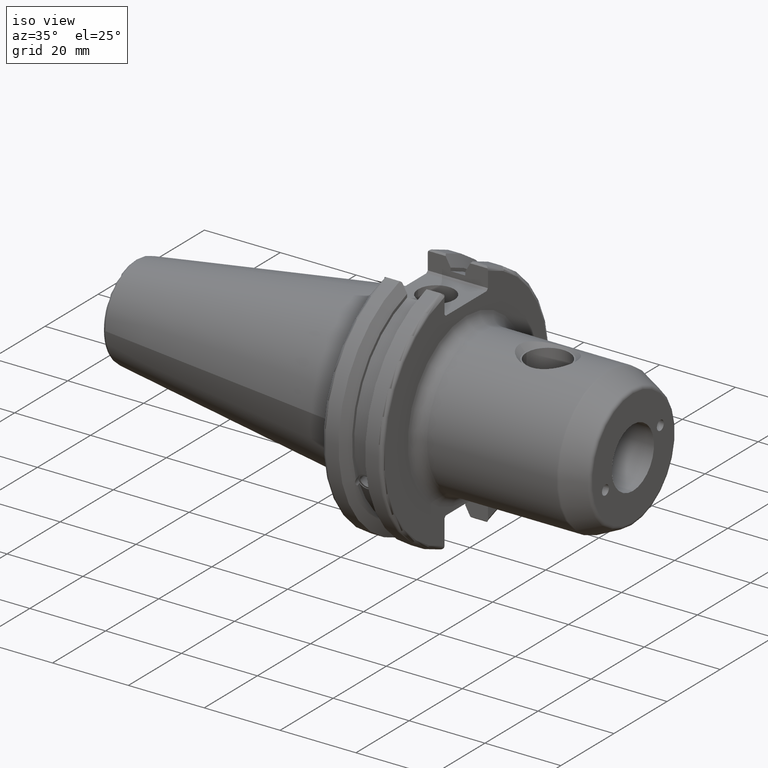
[diagram: clean part render]
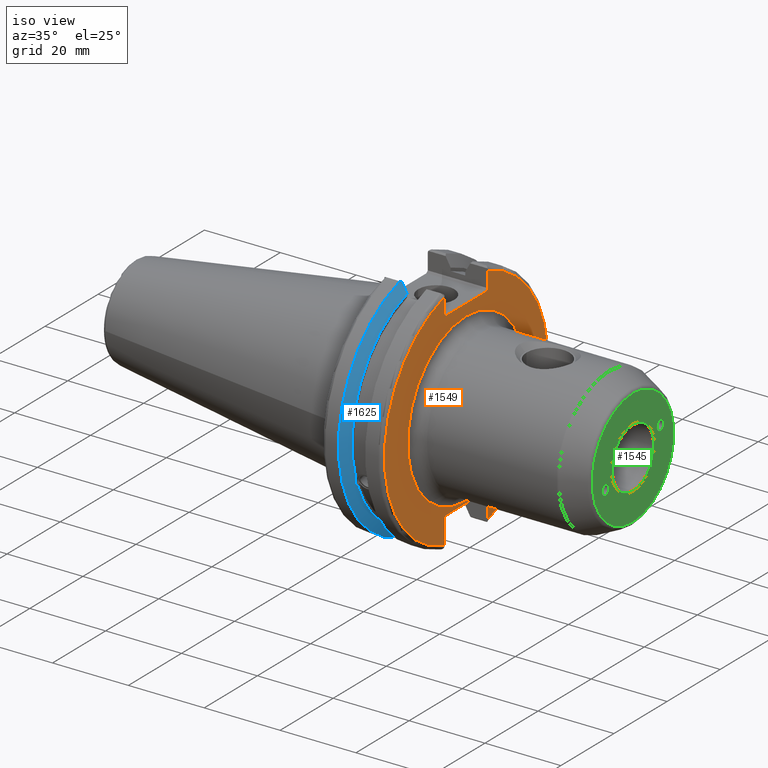
[diagram: same view with three faces highlighted in distinct colors, each labeled with its STEP entity id]
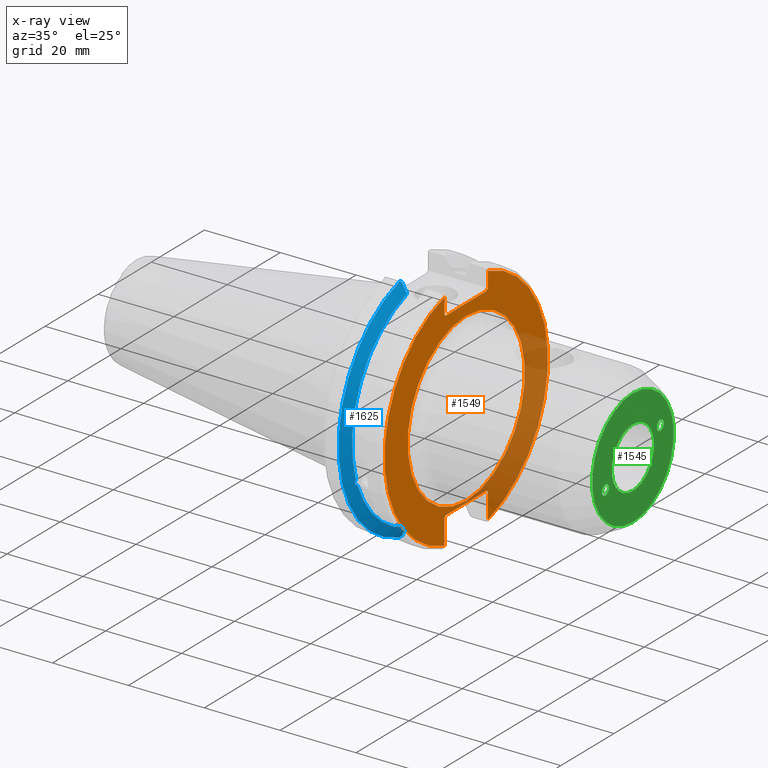
[diagram: x-ray of the same camera — body ghosted, the three highlighted faces saturated]
A machine part, iso view with three faces highlighted in distinct colors.
The next image is the same camera in x-ray (body ghosted, the three faces saturated) — at least one of them is partly hidden behind the body in this view.
Their STEP definitions:

[orange] entity #1549 — the highlighted planar face has unit normal (1, 0, 0).
#45=FACE_BOUND('',#293,.T.);
#63=PLANE('',#1679);
#196=FACE_OUTER_BOUND('',#292,.T.);
#292=EDGE_LOOP('',(#1098,#1099,#1100,#1101,#1102,#1103,#1104,#1105,#1106,
#1107,#1108,#1109));
#293=EDGE_LOOP('',(#1110));
#394=LINE('',#2431,#490);
#395=LINE('',#2433,#491);
#396=LINE('',#2435,#492);
#397=LINE('',#2437,#493);
#398=LINE('',#2439,#494);
#399=LINE('',#2443,#495);
#400=LINE('',#2445,#496);
#401=LINE('',#2447,#497);
#402=LINE('',#2449,#498);
#403=LINE('',#2450,#499);
#490=VECTOR('',#1905,10.);
#491=VECTOR('',#1906,10.);
#492=VECTOR('',#1907,10.);
#493=VECTOR('',#1908,10.);
#494=VECTOR('',#1909,10.);
#495=VECTOR('',#1912,10.);
#496=VECTOR('',#1913,10.);
#497=VECTOR('',#1914,10.);
#498=VECTOR('',#1915,10.);
#499=VECTOR('',#1916,10.);
#591=CIRCLE('',#1678,22.05);
#592=CIRCLE('',#1680,30.75);
#593=CIRCLE('',#1681,30.75);
#668=VERTEX_POINT('',#2423);
#669=VERTEX_POINT('',#2427);
#670=VERTEX_POINT('',#2428);
#671=VERTEX_POINT('',#2430);
#672=VERTEX_POINT('',#2432);
#673=VERTEX_POINT('',#2434);
#674=VERTEX_POINT('',#2436);
#675=VERTEX_POINT('',#2438);
#676=VERTEX_POINT('',#2440);
#677=VERTEX_POINT('',#2442);
#678=VERTEX_POINT('',#2444);
#679=VERTEX_POINT('',#2446);
#680=VERTEX_POINT('',#2448);
#835=EDGE_CURVE('',#668,#668,#591,.T.);
#836=EDGE_CURVE('',#669,#670,#592,.T.);
#837=EDGE_CURVE('',#669,#671,#394,.T.);
#838=EDGE_CURVE('',#672,#671,#395,.T.);
#839=EDGE_CURVE('',#672,#673,#396,.T.);
#840=EDGE_CURVE('',#674,#673,#397,.T.);
#841=EDGE_CURVE('',#674,#675,#398,.T.);
#842=EDGE_CURVE('',#676,#675,#593,.T.);
#843=EDGE_CURVE('',#676,#677,#399,.T.);
#844=EDGE_CURVE('',#678,#677,#400,.T.);
#845=EDGE_CURVE('',#678,#679,#401,.T.);
#846=EDGE_CURVE('',#680,#679,#402,.T.);
#847=EDGE_CURVE('',#680,#670,#403,.T.);
#1098=ORIENTED_EDGE('',*,*,#836,.F.);
#1099=ORIENTED_EDGE('',*,*,#837,.T.);
#1100=ORIENTED_EDGE('',*,*,#838,.F.);
#1101=ORIENTED_EDGE('',*,*,#839,.T.);
#1102=ORIENTED_EDGE('',*,*,#840,.F.);
#1103=ORIENTED_EDGE('',*,*,#841,.T.);
#1104=ORIENTED_EDGE('',*,*,#842,.F.);
#1105=ORIENTED_EDGE('',*,*,#843,.T.);
#1106=ORIENTED_EDGE('',*,*,#844,.F.);
#1107=ORIENTED_EDGE('',*,*,#845,.T.);
#1108=ORIENTED_EDGE('',*,*,#846,.F.);
#1109=ORIENTED_EDGE('',*,*,#847,.T.);
#1110=ORIENTED_EDGE('',*,*,#835,.F.);
#1549=ADVANCED_FACE('',(#196,#45),#63,.T.);
#1678=AXIS2_PLACEMENT_3D('',#2425,#1899,#1900);
#1679=AXIS2_PLACEMENT_3D('',#2426,#1901,#1902);
#1680=AXIS2_PLACEMENT_3D('',#2429,#1903,#1904);
#1681=AXIS2_PLACEMENT_3D('',#2441,#1910,#1911);
#1899=DIRECTION('center_axis',(1.,0.,0.));
#1900=DIRECTION('ref_axis',(0.,1.22464679914735E-16,-1.));
#1901=DIRECTION('center_axis',(1.,0.,0.));
#1902=DIRECTION('ref_axis',(0.,0.,-1.));
#1903=DIRECTION('center_axis',(-1.,0.,0.));
#1904=DIRECTION('ref_axis',(0.,1.,-6.12323399573677E-17));
#1905=DIRECTION('',(0.,0.,-1.));
#1906=DIRECTION('',(0.,0.707106781186549,0.707106781186546));
#1907=DIRECTION('',(0.,-1.,0.));
#1908=DIRECTION('',(0.,0.70710678118655,-0.707106781186545));
#1909=DIRECTION('',(0.,0.,1.));
#1910=DIRECTION('center_axis',(-1.,0.,0.));
#1911=DIRECTION('ref_axis',(0.,-1.,1.60812264967664E-16));
#1912=DIRECTION('',(0.,0.,1.));
#1913=DIRECTION('',(0.,-0.707106781186549,-0.707106781186546));
#1914=DIRECTION('',(0.,1.,0.));
#1915=DIRECTION('',(0.,-0.707106781186549,0.707106781186546));
#1916=DIRECTION('',(0.,0.,-1.));
#2423=CARTESIAN_POINT('',(19.05,-2.70034619211991E-15,-22.05));
#2425=CARTESIAN_POINT('Origin',(19.05,0.,0.));
#2426=CARTESIAN_POINT('Origin',(19.05,0.,0.));
#2427=CARTESIAN_POINT('',(19.05,8.19,29.6392712461019));
#2428=CARTESIAN_POINT('',(19.05,8.19,-29.6392712461019));
#2429=CARTESIAN_POINT('Origin',(19.05,0.,0.));
#2430=CARTESIAN_POINT('',(19.05,8.19,25.5));
#2431=CARTESIAN_POINT('',(19.05,8.19,12.5));
#2432=CARTESIAN_POINT('',(19.05,7.69,25.));
#2433=CARTESIAN_POINT('',(19.05,-0.35750000000001,16.9525));
#2434=CARTESIAN_POINT('',(19.05,-7.69,25.));
#2435=CARTESIAN_POINT('',(19.05,0.,25.));
#2436=CARTESIAN_POINT('',(19.05,-8.19,25.5));
#2437=CARTESIAN_POINT('',(19.05,0.357500000000014,16.9525));
#2438=CARTESIAN_POINT('',(19.05,-8.19,29.6392712461019));
#2439=CARTESIAN_POINT('',(19.05,-8.19,12.5));
#2440=CARTESIAN_POINT('',(19.05,-8.19,-29.6392712461019));
#2441=CARTESIAN_POINT('Origin',(19.05,0.,0.));
#2442=CARTESIAN_POINT('',(19.05,-8.19,-23.1));
#2443=CARTESIAN_POINT('',(19.05,-8.19,-11.3));
#2444=CARTESIAN_POINT('',(19.05,-7.69,-22.6));
#2445=CARTESIAN_POINT('',(19.05,-0.242499999999991,-15.1525));
#2446=CARTESIAN_POINT('',(19.05,7.69,-22.6));
#2447=CARTESIAN_POINT('',(19.05,-2.77555756156289E-16,-22.6));
#2448=CARTESIAN_POINT('',(19.05,8.19,-23.1));
#2449=CARTESIAN_POINT('',(19.05,0.242499999999989,-15.1525));
#2450=CARTESIAN_POINT('',(19.05,8.19,-11.3));

[blue] entity #1625 — the highlighted conical surface has half-angle 60 deg.
#25=(
BOUNDED_CURVE()
B_SPLINE_CURVE(2,(#2981,#2982,#2983),.UNSPECIFIED.,.F.,.F.)
B_SPLINE_CURVE_WITH_KNOTS((3,3),(0.,0.276549142796136),.UNSPECIFIED.)
CURVE()
GEOMETRIC_REPRESENTATION_ITEM()
RATIONAL_B_SPLINE_CURVE((1.,1.00095203903316,1.00031614444813))
REPRESENTATION_ITEM('')
);
#26=(
BOUNDED_CURVE()
B_SPLINE_CURVE(2,(#2993,#2994,#2995),.UNSPECIFIED.,.F.,.F.)
B_SPLINE_CURVE_WITH_KNOTS((3,3),(0.0550586467392022,0.33160778953585),
 .UNSPECIFIED.)
CURVE()
GEOMETRIC_REPRESENTATION_ITEM()
RATIONAL_B_SPLINE_CURVE((1.00031614445148,1.00095203904325,1.))
REPRESENTATION_ITEM('')
);
#27=(
BOUNDED_CURVE()
B_SPLINE_CURVE(2,(#3028,#3029,#3030),.UNSPECIFIED.,.F.,.F.)
B_SPLINE_CURVE_WITH_KNOTS((3,3),(0.,0.0639048713676282),.UNSPECIFIED.)
CURVE()
GEOMETRIC_REPRESENTATION_ITEM()
RATIONAL_B_SPLINE_CURVE((1.,1.00028444218284,1.00047644010574))
REPRESENTATION_ITEM('')
);
#28=(
BOUNDED_CURVE()
B_SPLINE_CURVE(2,(#3036,#3037,#3038),.UNSPECIFIED.,.F.,.F.)
B_SPLINE_CURVE_WITH_KNOTS((3,3),(0.329353533631205,0.393258405001025),
 .UNSPECIFIED.)
CURVE()
GEOMETRIC_REPRESENTATION_ITEM()
RATIONAL_B_SPLINE_CURVE((1.00047644010572,1.00028444218283,1.))
REPRESENTATION_ITEM('')
);
#109=B_SPLINE_CURVE_WITH_KNOTS('',3,(#2595,#2596,#2597,#2598,#2599,#2600,
#2601,#2602,#2603,#2604,#2605,#2606,#2607,#2608),.UNSPECIFIED.,.F.,.F.,
(4,2,2,2,2,2,4),(0.451995700189024,0.464547828547663,0.504528771685167,
0.544509714822672,0.584490657960178,0.624471601097683,0.63702372945632),
 .UNSPECIFIED.);
#272=FACE_OUTER_BOUND('',#384,.T.);
#384=EDGE_LOOP('',(#1510,#1511,#1512,#1513,#1514,#1515,#1516,#1517));
#608=CIRCLE('',#1722,28.9593772964944);
#631=CIRCLE('',#1780,31.75);
#649=CIRCLE('',#1831,28.9593772964944);
#701=VERTEX_POINT('',#2592);
#702=VERTEX_POINT('',#2594);
#719=VERTEX_POINT('',#2687);
#780=VERTEX_POINT('',#2978);
#781=VERTEX_POINT('',#2980);
#784=VERTEX_POINT('',#2992);
#788=VERTEX_POINT('',#3026);
#789=VERTEX_POINT('',#3032);
#875=EDGE_CURVE('',#702,#701,#109,.T.);
#899=EDGE_CURVE('',#702,#719,#608,.T.);
#984=EDGE_CURVE('',#781,#780,#25,.T.);
#990=EDGE_CURVE('',#784,#719,#26,.T.);
#998=EDGE_CURVE('',#788,#780,#27,.T.);
#1000=EDGE_CURVE('',#788,#789,#631,.T.);
#1001=EDGE_CURVE('',#784,#789,#28,.T.);
#1045=EDGE_CURVE('',#781,#701,#649,.T.);
#1510=ORIENTED_EDGE('',*,*,#875,.T.);
#1511=ORIENTED_EDGE('',*,*,#1045,.F.);
#1512=ORIENTED_EDGE('',*,*,#984,.T.);
#1513=ORIENTED_EDGE('',*,*,#998,.F.);
#1514=ORIENTED_EDGE('',*,*,#1000,.T.);
#1515=ORIENTED_EDGE('',*,*,#1001,.F.);
#1516=ORIENTED_EDGE('',*,*,#990,.T.);
#1517=ORIENTED_EDGE('',*,*,#899,.F.);
#1535=CONICAL_SURFACE('',#1830,30.3546886482472,1.0471975511966);
#1625=ADVANCED_FACE('',(#272),#1535,.T.);
#1722=AXIS2_PLACEMENT_3D('',#2688,#2012,#2013);
#1780=AXIS2_PLACEMENT_3D('',#3034,#2170,#2171);
#1830=AXIS2_PLACEMENT_3D('',#3154,#2291,#2292);
#1831=AXIS2_PLACEMENT_3D('',#3155,#2293,#2294);
#2012=DIRECTION('center_axis',(1.,0.,0.));
#2013=DIRECTION('ref_axis',(0.,0.,-1.));
#2170=DIRECTION('center_axis',(1.,0.,0.));
#2171=DIRECTION('ref_axis',(0.,0.,-1.));
#2291=DIRECTION('center_axis',(-1.,0.,0.));
#2292=DIRECTION('ref_axis',(0.,-1.,-1.22464679914735E-16));
#2293=DIRECTION('center_axis',(1.,0.,0.));
#2294=DIRECTION('ref_axis',(0.,0.,-1.));
#2592=CARTESIAN_POINT('',(9.2191,-27.4956274489925,-9.09043478536245));
#2594=CARTESIAN_POINT('',(9.2191,-26.9060914640648,-10.7101715919071));
#2595=CARTESIAN_POINT('Ctrl Pts',(9.2191,-26.9060914640648,-10.7101715919071));
#2596=CARTESIAN_POINT('Ctrl Pts',(9.20497959280038,-26.9406927482839,-10.6893765730703));
#2597=CARTESIAN_POINT('Ctrl Pts',(9.19150701821433,-26.9744191989197,-10.6676007180673));
#2598=CARTESIAN_POINT('Ctrl Pts',(9.13811855884095,-27.1113422433189,-10.5723885976054));
#2599=CARTESIAN_POINT('Ctrl Pts',(9.09998029158246,-27.2180531796526,-10.4801333026531));
#2600=CARTESIAN_POINT('Ctrl Pts',(9.04778935539424,-27.3968610665578,-10.2639559818059));
#2601=CARTESIAN_POINT('Ctrl Pts',(9.0341,-27.4684373304961,-10.139516340139));
#2602=CARTESIAN_POINT('Ctrl Pts',(9.0341,-27.559599249844,-9.8890510252165));
#2603=CARTESIAN_POINT('Ctrl Pts',(9.04778935539424,-27.5847569104122,-9.74771639360671));
#2604=CARTESIAN_POINT('Ctrl Pts',(9.09998029158246,-27.5867382255984,-9.46717946402648));
#2605=CARTESIAN_POINT('Ctrl Pts',(9.13811855884095,-27.5642934663232,-9.32791534028655));
#2606=CARTESIAN_POINT('Ctrl Pts',(9.19150701821434,-27.5206055003512,-9.16696618806877));
#2607=CARTESIAN_POINT('Ctrl Pts',(9.20497959280038,-27.5087667900418,-9.12860597076217));
#2608=CARTESIAN_POINT('Ctrl Pts',(9.2191,-27.4956274489925,-9.09043478536245));
#2687=CARTESIAN_POINT('',(9.2191,-8.19,-27.7771386827498));
#2688=CARTESIAN_POINT('Origin',(9.2191,0.,0.));
#2978=CARTESIAN_POINT('',(7.88668530351257,-8.19,30.1755016258903));
#2980=CARTESIAN_POINT('',(9.2191,-8.19,27.7771386827498));
#2981=CARTESIAN_POINT('Ctrl Pts',(9.2191,-8.19,27.7771386827498));
#2982=CARTESIAN_POINT('Ctrl Pts',(8.58046356152393,-8.19,28.9303689539705));
#2983=CARTESIAN_POINT('Ctrl Pts',(7.88668530351257,-8.19,30.1755016258903));
#2992=CARTESIAN_POINT('',(7.88668530351256,-8.19,-30.1755016258903));
#2993=CARTESIAN_POINT('Ctrl Pts',(7.88668530351256,-8.19,-30.1755016258903));
#2994=CARTESIAN_POINT('Ctrl Pts',(8.5804635615235,-8.19,-28.9303689539712));
#2995=CARTESIAN_POINT('Ctrl Pts',(9.2191,-8.19,-27.7771386827498));
#3026=CARTESIAN_POINT('',(7.60793323092436,-8.67204822802685,30.5427254764662));
#3028=CARTESIAN_POINT('Ctrl Pts',(7.60793323092436,-8.67204822802686,30.5427254764662));
#3029=CARTESIAN_POINT('Ctrl Pts',(7.74899148121626,-8.42917748262648,30.357706789263));
#3030=CARTESIAN_POINT('Ctrl Pts',(7.88668530351257,-8.19,30.1755016258903));
#3032=CARTESIAN_POINT('',(7.60793323092436,-8.67204822802685,-30.5427254764662));
#3034=CARTESIAN_POINT('Origin',(7.60793323092436,0.,0.));
#3036=CARTESIAN_POINT('Ctrl Pts',(7.88668530351256,-8.19,-30.1755016258903));
#3037=CARTESIAN_POINT('Ctrl Pts',(7.74899148121159,-8.42917748263467,-30.3577067892692));
#3038=CARTESIAN_POINT('Ctrl Pts',(7.60793323092435,-8.67204822802687,-30.5427254764662));
#3154=CARTESIAN_POINT('Origin',(8.41351661546218,0.,0.));
#3155=CARTESIAN_POINT('Origin',(9.2191,0.,0.));

[green] entity #1545 — the highlighted planar face has unit normal (1, 0, 0).
#41=FACE_BOUND('',#285,.T.);
#42=FACE_BOUND('',#286,.T.);
#43=FACE_BOUND('',#287,.T.);
#62=PLANE('',#1669);
#133=ELLIPSE('',#1653,1.30317446750552,1.3);
#134=ELLIPSE('',#1657,1.30317446750552,1.3);
#192=FACE_OUTER_BOUND('',#284,.T.);
#284=EDGE_LOOP('',(#1080));
#285=EDGE_LOOP('',(#1081));
#286=EDGE_LOOP('',(#1082));
#287=EDGE_LOOP('',(#1083));
#584=CIRCLE('',#1666,15.3629297391925);
#586=CIRCLE('',#1670,7.9375);
#652=VERTEX_POINT('',#2304);
#655=VERTEX_POINT('',#2313);
#663=VERTEX_POINT('',#2404);
#665=VERTEX_POINT('',#2412);
#810=EDGE_CURVE('',#652,#652,#133,.T.);
#814=EDGE_CURVE('',#655,#655,#134,.T.);
#826=EDGE_CURVE('',#663,#663,#584,.T.);
#829=EDGE_CURVE('',#665,#665,#586,.T.);
#1080=ORIENTED_EDGE('',*,*,#826,.F.);
#1081=ORIENTED_EDGE('',*,*,#810,.T.);
#1082=ORIENTED_EDGE('',*,*,#814,.T.);
#1083=ORIENTED_EDGE('',*,*,#829,.T.);
#1545=ADVANCED_FACE('',(#192,#41,#42,#43),#62,.T.);
#1653=AXIS2_PLACEMENT_3D('',#2305,#1842,#1843);
#1657=AXIS2_PLACEMENT_3D('',#2314,#1852,#1853);
#1666=AXIS2_PLACEMENT_3D('',#2406,#1873,#1874);
#1669=AXIS2_PLACEMENT_3D('',#2411,#1880,#1881);
#1670=AXIS2_PLACEMENT_3D('',#2413,#1882,#1883);
#1842=DIRECTION('center_axis',(-1.,0.,0.));
#1843=DIRECTION('ref_axis',(0.,-0.939692620785894,-0.342020143325707));
#1852=DIRECTION('center_axis',(-1.,0.,0.));
#1853=DIRECTION('ref_axis',(0.,0.939692620785894,0.342020143325707));
#1873=DIRECTION('center_axis',(-1.,0.,0.));
#1874=DIRECTION('ref_axis',(0.,1.22464679914735E-16,-1.));
#1880=DIRECTION('center_axis',(1.,0.,0.));
#1881=DIRECTION('ref_axis',(0.,0.,-1.));
#1882=DIRECTION('center_axis',(-1.,0.,0.));
#1883=DIRECTION('ref_axis',(0.,0.,1.));
#2304=CARTESIAN_POINT('',(63.,-9.03381530380415,-3.76018297321123));
#2305=CARTESIAN_POINT('Origin',(63.,-10.336618828645,-3.76222157658235));
#2313=CARTESIAN_POINT('',(63.,9.03381530380415,3.76018297321124));
#2314=CARTESIAN_POINT('Origin',(63.,10.336618828645,3.76222157658236));
#2404=CARTESIAN_POINT('',(63.,-1.88141627306278E-15,-15.3629297391925));
#2406=CARTESIAN_POINT('Origin',(63.,0.,0.));
#2411=CARTESIAN_POINT('Origin',(63.,0.,16.));
#2412=CARTESIAN_POINT('',(63.,-9.72063396823212E-16,-7.9375));
#2413=CARTESIAN_POINT('Origin',(63.,0.,0.));